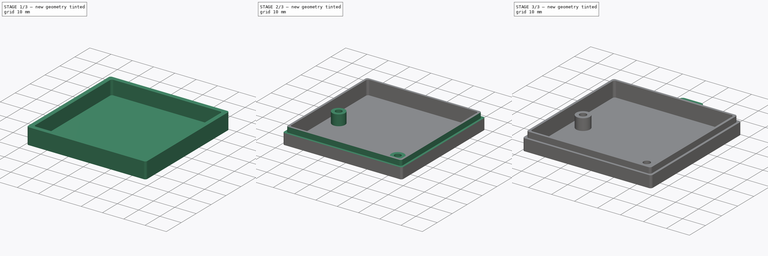
[diagram: build sequence overview — one tinted view per stage of 3, left to right]
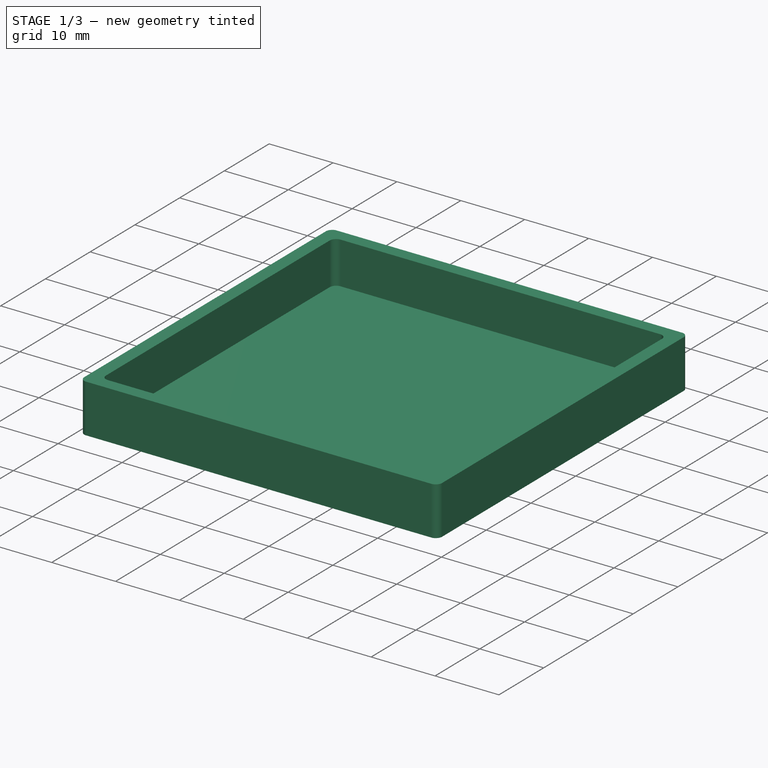
[diagram: stage 1 of 3 — iso view after this stage's code; geometry added in this stage tinted green]
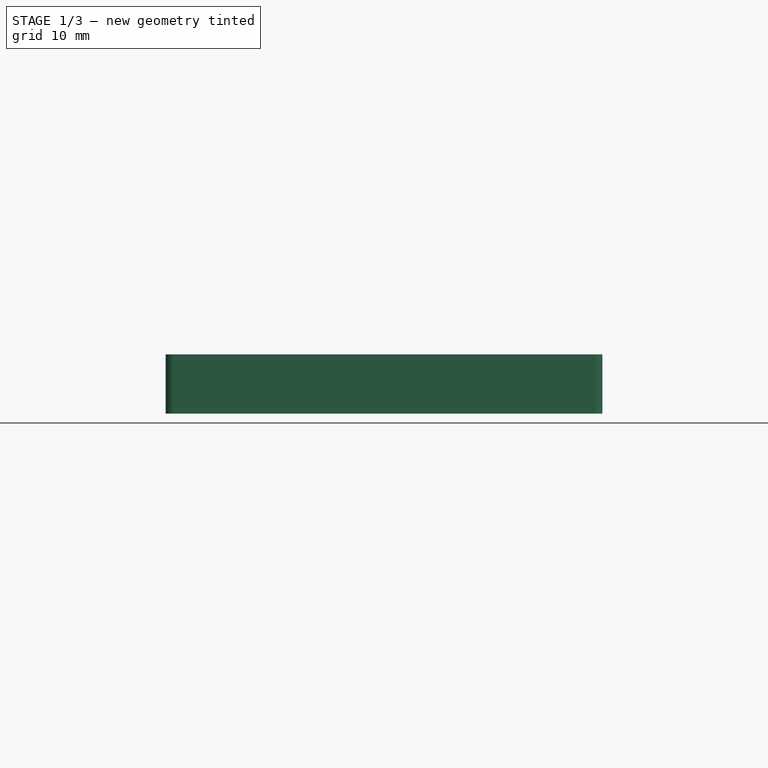
[diagram: stage 1 of 3 — front view after this stage's code; geometry added in this stage tinted green]
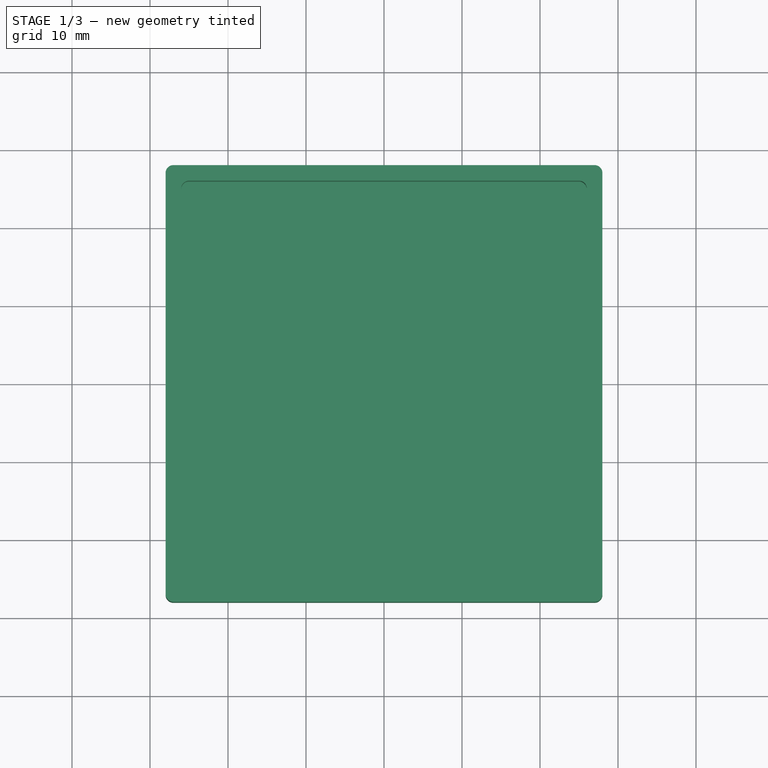
[diagram: stage 1 of 3 — top view after this stage's code; geometry added in this stage tinted green]
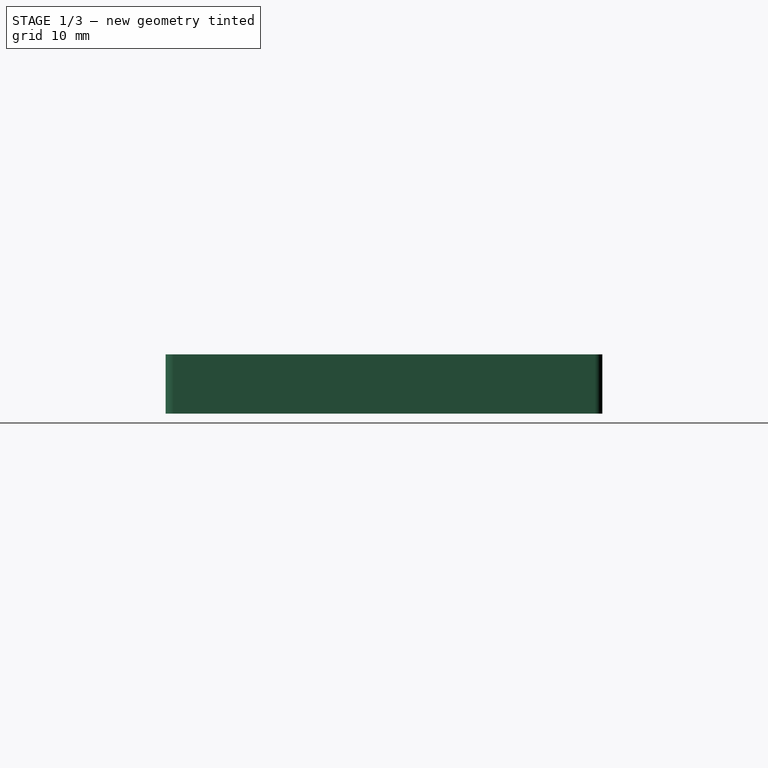
[diagram: stage 1 of 3 — right view after this stage's code; geometry added in this stage tinted green]
FCSTD DOCUMENT  (FreeCAD 0.19R24291 (Git))
Label: Base
License: All rights reserved
LicenseURL: http://en.wikipedia.org/wiki/All_rights_reserved
objects: Sketcher::SketchObject×6, PartDesign::Pad×3, PartDesign::Pocket×3, PartDesign::Body×1
note: 19 computed .brp shape members not serialized (recipe doc carries the construction recipe); baked Part::Feature solids carry a one-line shape summary decoded from their .brp

FEATURE [Sketcher::SketchObject] Sketch
  FullyConstrained = true
  MapMode = 5
  Support = -> [XY_Plane]
  sketch-geometry (8):
    g0: LineSegment StartX=-27 StartY=28 StartZ=0 EndX=27 EndY=28 EndZ=0
    g1: LineSegment StartX=28 StartY=27 StartZ=0 EndX=28 EndY=-27 EndZ=0
    g2: LineSegment StartX=27 StartY=-28 StartZ=0 EndX=-27 EndY=-28 EndZ=0
    g3: LineSegment StartX=-28 StartY=-27 StartZ=0 EndX=-28 EndY=27 EndZ=0
    g4: ArcOfCircle CenterX=-27 CenterY=27 CenterZ=0 NormalX=0 NormalY=0 NormalZ=1 AngleXU=0 Radius=1 StartAngle=1.5708 EndAngle=3.14159
    g5: ArcOfCircle CenterX=27 CenterY=27 CenterZ=0 NormalX=0 NormalY=0 NormalZ=1 AngleXU=0 Radius=1 StartAngle=-9e-16 EndAngle=1.5708
    g6: ArcOfCircle CenterX=27 CenterY=-27 CenterZ=0 NormalX=0 NormalY=0 NormalZ=1 AngleXU=0 Radius=1 StartAngle=4.71239 EndAngle=6.28319
    g7: ArcOfCircle CenterX=-27 CenterY=-27 CenterZ=0 NormalX=0 NormalY=0 NormalZ=1 AngleXU=0 Radius=1 StartAngle=3.14159 EndAngle=4.71239
  constraints (20):
    c: Horizontal(g2)
    c: Horizontal(g0)
    c: Vertical(g1)
    c: Vertical(g3)
    c: Tangent(g3,g4) = 1.5708
    c: Tangent(g0,g4) = 1.5708
    c: DistanceY(g4,g0) = 1
    c: Tangent(g1,g5) = 1.5708
    c: Tangent(g0,g5) = 1.5708
    c: DistanceX(g5,g1) = 1
    c: Tangent(g1,g6) = 1.5708
    c: Tangent(g2,g6) = 1.5708
    c: DistanceX(g6,g1) = 1
    c: Tangent(g2,g7) = 1.5708
    c: Tangent(g3,g7) = 1.5708
    c: DistanceX(g3,g7) = 1
    c: DistanceY(g2,g0) = 56
    c: DistanceY(g-1,g0) = 28
    c: DistanceX(g3,g1) = 56
    c: DistanceX(g3,g-1) = 28
FEATURE [PartDesign::Pad] Pad
  Direction = (1,1,1)
  Length = 7.6
  Length2 = 100
  Profile = -> Sketch
  Type = 0
FEATURE [Sketcher::SketchObject] Sketch001
  FullyConstrained = true
  MapMode = 5
  Placement = pos=(0,0,7.6) rot=(0,0,1;0rad)
  Support = -> [Pad]
  sketch-geometry (8):
    g0: LineSegment StartX=-25 StartY=26 StartZ=0 EndX=25 EndY=26 EndZ=0
    g1: LineSegment StartX=26 StartY=25 StartZ=0 EndX=26 EndY=-25 EndZ=0
    g2: LineSegment StartX=25 StartY=-26 StartZ=0 EndX=-25 EndY=-26 EndZ=0
    g3: LineSegment StartX=-26 StartY=-25 StartZ=0 EndX=-26 EndY=25 EndZ=0
    g4: ArcOfCircle CenterX=25 CenterY=25 CenterZ=0 NormalX=0 NormalY=0 NormalZ=1 AngleXU=0 Radius=1 StartAngle=2.7272e-12 EndAngle=1.5708
    g5: ArcOfCircle CenterX=-25 CenterY=25 CenterZ=0 NormalX=0 NormalY=0 NormalZ=1 AngleXU=0 Radius=1 StartAngle=1.5708 EndAngle=3.14159
    g6: ArcOfCircle CenterX=-25 CenterY=-25 CenterZ=0 NormalX=0 NormalY=0 NormalZ=1 AngleXU=0 Radius=1 StartAngle=3.14159 EndAngle=4.71239
    g7: ArcOfCircle CenterX=25 CenterY=-25 CenterZ=0 NormalX=0 NormalY=0 NormalZ=1 AngleXU=0 Radius=1 StartAngle=4.71239 EndAngle=6.28319
  constraints (20):
    c: Horizontal(g0)
    c: Vertical(g1)
    c: Vertical(g3)
    c: Horizontal(g2)
    c: Tangent(g1,g4) = 1.5708
    c: Tangent(g0,g4) = 1.5708
    c: DistanceY(g4,g0) = 1
    c: Tangent(g0,g5) = 1.5708
    c: Tangent(g3,g5) = 1.5708
    c: DistanceY(g5,g0) = 1
    c: Tangent(g2,g6) = 1.5708
    c: Tangent(g3,g6) = 1.5708
    c: DistanceY(g2,g6) = 1
    c: Tangent(g1,g7) = 1.5708
    c: Tangent(g2,g7) = 1.5708
    c: DistanceX(g7,g1) = 1
    c: DistanceX(g-1,g1) = 26
    c: DistanceX(g3,g1) = 52
    c: DistanceY(g-1,g0) = 26
    c: DistanceY(g2,g0) = 52
FEATURE [PartDesign::Pocket] Pocket
  BaseFeature = -> Pad
  Length = 6.6
  Length2 = 100
  Profile = -> Sketch001
  Type = 0
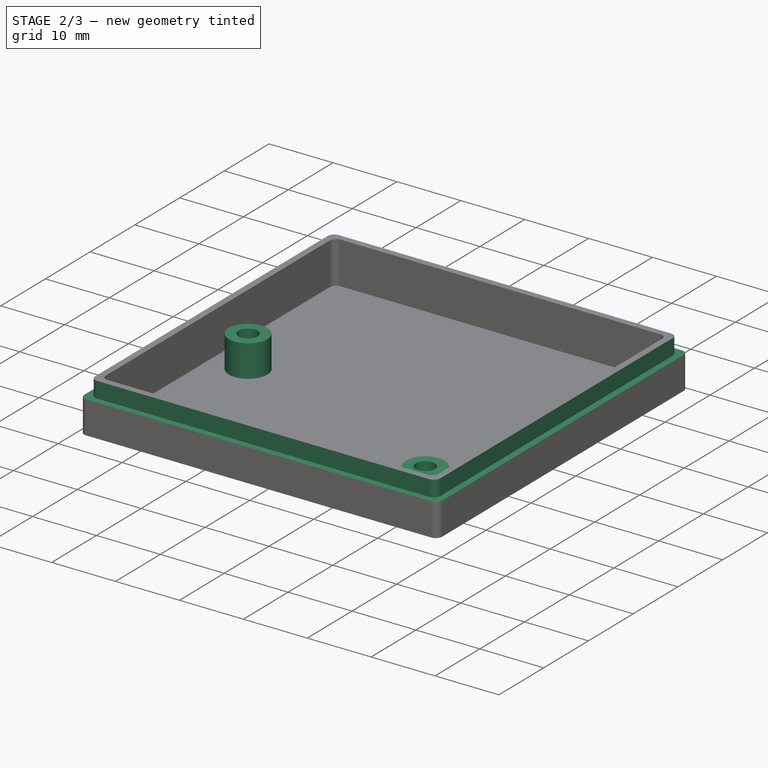
[diagram: stage 2 of 3 — iso view after this stage's code; geometry added in this stage tinted green]
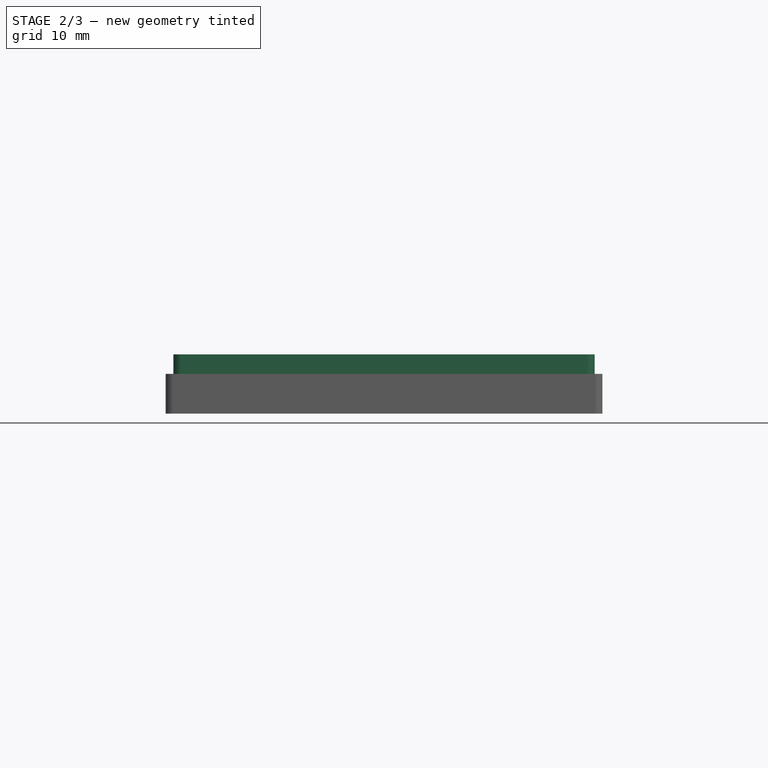
[diagram: stage 2 of 3 — front view after this stage's code; geometry added in this stage tinted green]
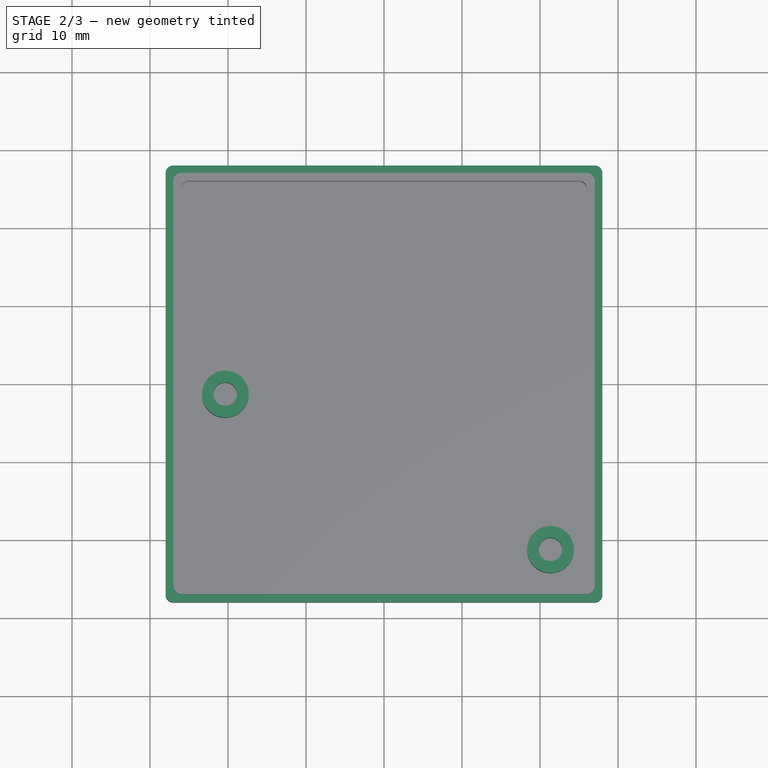
[diagram: stage 2 of 3 — top view after this stage's code; geometry added in this stage tinted green]
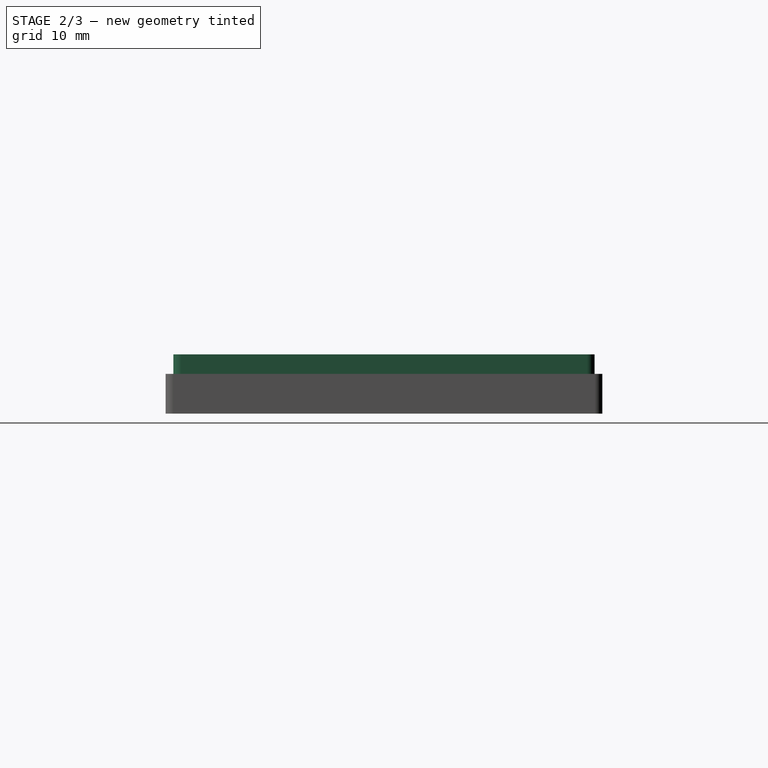
[diagram: stage 2 of 3 — right view after this stage's code; geometry added in this stage tinted green]
FEATURE [Sketcher::SketchObject] Sketch002
  FullyConstrained = true
  MapMode = 5
  Placement = pos=(0,0,1) rot=(0,0,1;0rad)
  Support = -> [Pocket]
  sketch-geometry (5):
    g0: GeomPoint X=-26 Y=-26 Z=0
    g1: Circle CenterX=-20.3447 CenterY=-1.323 CenterZ=0 NormalX=0 NormalY=0 NormalZ=1 AngleXU=0 Radius=1.5
    g2: Circle CenterX=21.34 CenterY=-21.243 CenterZ=0 NormalX=0 NormalY=0 NormalZ=1 AngleXU=0 Radius=1.5
    g3: Circle CenterX=-20.3447 CenterY=-1.323 CenterZ=0 NormalX=0 NormalY=0 NormalZ=1 AngleXU=0 Radius=3
    g4: Circle CenterX=21.34 CenterY=-21.243 CenterZ=0 NormalX=0 NormalY=0 NormalZ=1 AngleXU=0 Radius=3
  constraints (12):
    c: DistanceY(g0,g-1) = 26
    c: DistanceX(g0,g-1) = 26
    c: Radius(g1) = 1.5
    c: DistanceX(g1,g-1) = 20.3447
    c: DistanceY(g0,g1) = 24.677
    c: Radius(g2) = 1.5
    c: DistanceX(g0,g2) = 47.34
    c: DistanceY(g0,g2) = 4.757
    c: Radius(g3) = 3
    c: Coincident(g3,g1)
    c: Radius(g4) = 3
    c: Coincident(g4,g2)
FEATURE [PartDesign::Pad] Pad001
  BaseFeature = -> Pocket
  Direction = (1,1,1)
  Length = 5
  Length2 = 100
  Profile = -> Sketch002
  Type = 0
FEATURE [Sketcher::SketchObject] Sketch003
  FullyConstrained = false
  MapMode = 5
  Placement = pos=(0,0,7.6) rot=(0,0,1;0rad)
  Support = -> [Pad001]
  sketch-geometry (16):
    g0: LineSegment StartX=27.1459 StartY=28.0646 StartZ=0 EndX=28.0664 EndY=28.0646 EndZ=0
    g1: LineSegment StartX=28.0664 StartY=28.0646 StartZ=0 EndX=28.0664 EndY=-28.099 EndZ=0
    g2: LineSegment StartX=28.0664 StartY=-28.099 StartZ=0 EndX=27.1459 EndY=-28.099 EndZ=0
    g3: LineSegment StartX=27 StartY=-26 StartZ=0 EndX=27 EndY=26 EndZ=0
    g4: LineSegment StartX=27.1459 StartY=-28.099 StartZ=0 EndX=-28.1448 EndY=-28.099 EndZ=0
    g5: LineSegment StartX=-28.1448 StartY=-28.099 StartZ=0 EndX=-28.1448 EndY=-26.7506 EndZ=0
    g6: LineSegment StartX=-26 StartY=-27 StartZ=0 EndX=26 EndY=-27 EndZ=0
    g7: LineSegment StartX=-27 StartY=-26 StartZ=0 EndX=-27 EndY=26 EndZ=0
    g8: LineSegment StartX=-26.6144 StartY=28.0646 StartZ=0 EndX=-28.1448 EndY=28.0646 EndZ=0
    g9: LineSegment StartX=-28.1448 StartY=28.0646 StartZ=0 EndX=-28.1448 EndY=-26.7506 EndZ=0
    g10: LineSegment StartX=27.1459 StartY=28.0646 StartZ=0 EndX=-26.6144 EndY=28.0646 EndZ=0
    g11: LineSegment StartX=-26 StartY=27 StartZ=0 EndX=26 EndY=27 EndZ=0
    g12: ArcOfCircle CenterX=26 CenterY=26 CenterZ=0 NormalX=0 NormalY=0 NormalZ=1 AngleXU=0 Radius=1 StartAngle=2e-16 EndAngle=1.5708
    g13: ArcOfCircle CenterX=-26 CenterY=26 CenterZ=0 NormalX=0 NormalY=0 NormalZ=1 AngleXU=0 Radius=1 StartAngle=1.5708 EndAngle=3.14159
    g14: ArcOfCircle CenterX=-26 CenterY=-26 CenterZ=0 NormalX=0 NormalY=0 NormalZ=1 AngleXU=0 Radius=1 StartAngle=3.14159 EndAngle=4.71239
    g15: ArcOfCircle CenterX=26 CenterY=-26 CenterZ=0 NormalX=0 NormalY=0 NormalZ=1 AngleXU=0 Radius=1 StartAngle=4.71239 EndAngle=6.28319
  constraints (35):
    c: Coincident(g0,g1)
    c: Coincident(g1,g2)
    c: Horizontal(g0)
    c: Horizontal(g2)
    c: Vertical(g1)
    c: Vertical(g3)
    c: Coincident(g4,g5)
    c: Horizontal(g4)
    c: Horizontal(g6)
    c: Vertical(g5)
    c: Coincident(g4,g2)
    c: Coincident(g8,g9)
    c: Horizontal(g8)
    c: Vertical(g7)
    c: Vertical(g9)
    c: Horizontal(g10)
    c: Horizontal(g11)
    c: Coincident(g10,g0)
    c: Coincident(g8,g10)
    c: Tangent(g11,g12) = 1.5708
    c: Tangent(g3,g12) = -1.5708
    c: Tangent(g7,g13) = 1.5708
    c: Tangent(g11,g13) = 1.5708
    c: Tangent(g7,g14) = 1.5708
    c: Tangent(g6,g14) = -1.5708
    c: Tangent(g3,g15) = -1.5708
    c: Tangent(g6,g15) = -1.5708
    c: DistanceY(g12,g11) = 1
    c: DistanceY(g13,g11) = 1
    c: DistanceY(g6,g15) = 1
    c: DistanceY(g6,g14) = 1
    c: DistanceX(g7,g-1) = 27
    c: DistanceY(g-1,g11) = 27
    c: DistanceY(g6,g-1) = 27
    c: DistanceX(g-1,g3) = 27
FEATURE [PartDesign::Pocket] Pocket001
  BaseFeature = -> Pad001
  Length = 2.5
  Length2 = 100
  Profile = -> Sketch003
  Type = 0
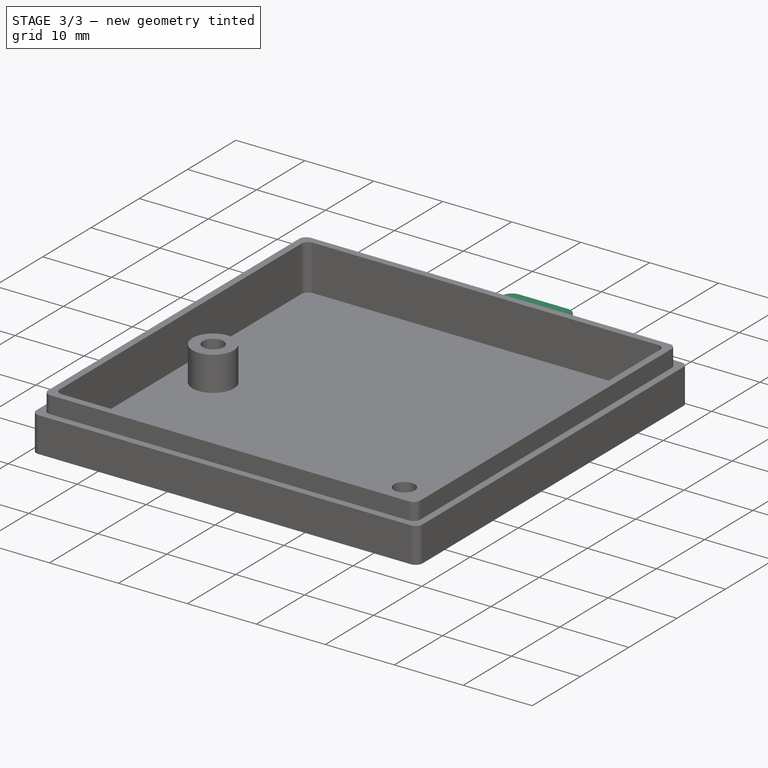
[diagram: stage 3 of 3 — iso view after this stage's code; geometry added in this stage tinted green]
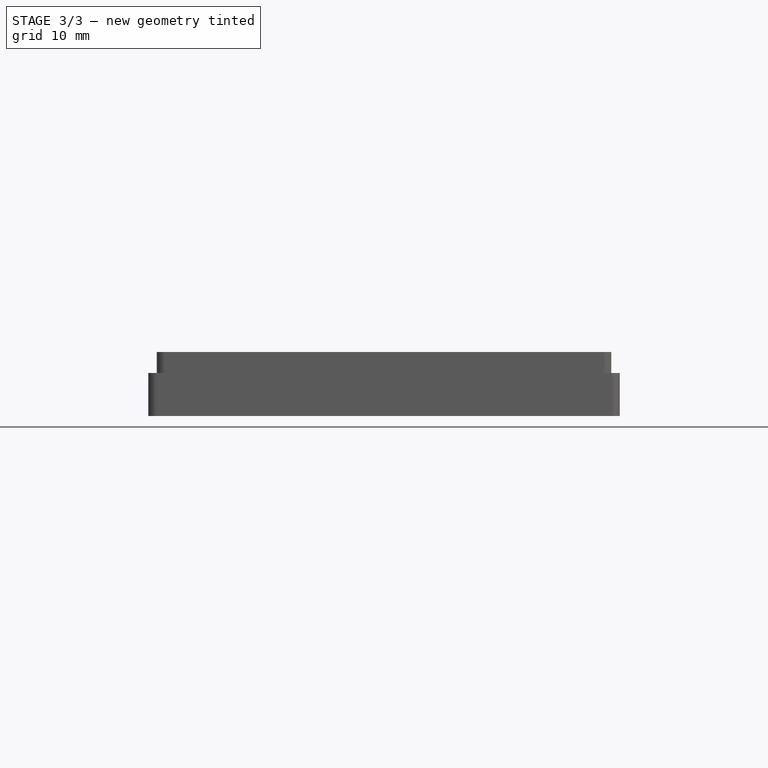
[diagram: stage 3 of 3 — front view after this stage's code; geometry added in this stage tinted green]
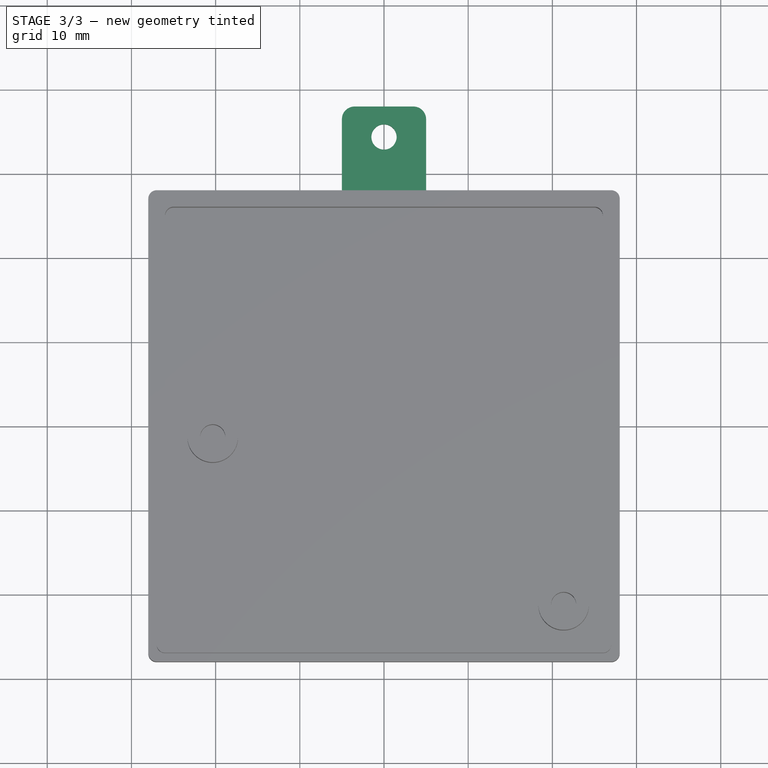
[diagram: stage 3 of 3 — top view after this stage's code; geometry added in this stage tinted green]
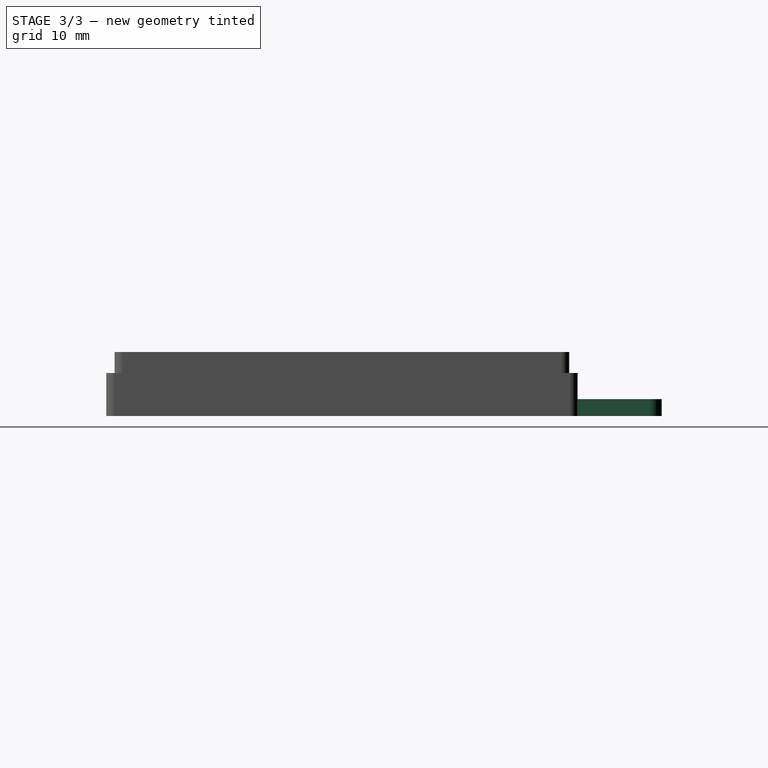
[diagram: stage 3 of 3 — right view after this stage's code; geometry added in this stage tinted green]
FEATURE [Sketcher::SketchObject] Sketch004
  FullyConstrained = true
  MapMode = 5
  Placement = pos=(0,28,0) rot=(0,0.707107,0.707107;3.14159rad)
  Support = -> [Pocket001]
  sketch-geometry (4):
    g0: LineSegment StartX=-5 StartY=0 StartZ=0 EndX=5 EndY=0 EndZ=0
    g1: LineSegment StartX=5 StartY=0 StartZ=0 EndX=5 EndY=2 EndZ=0
    g2: LineSegment StartX=5 StartY=2 StartZ=0 EndX=-5 EndY=2 EndZ=0
    g3: LineSegment StartX=-5 StartY=2 StartZ=0 EndX=-5 EndY=0 EndZ=0
  constraints (12):
    c: Coincident(g0,g1)
    c: Coincident(g1,g2)
    c: Coincident(g2,g3)
    c: Coincident(g3,g0)
    c: Horizontal(g0)
    c: Horizontal(g2)
    c: Vertical(g1)
    c: Vertical(g3)
    c: PointOnObject(g0,g-1)
    c: DistanceY(g1,g1) = 2
    c: DistanceX(g0,g-1) = 5
    c: DistanceX(g-1,g0) = 5
FEATURE [PartDesign::Pad] Pad002
  BaseFeature = -> Pocket001
  Direction = (1,1,1)
  Length = 10
  Length2 = 100
  Profile = -> Sketch004
  Type = 0
FEATURE [Sketcher::SketchObject] Sketch005
  FullyConstrained = false
  MapMode = 5
  Placement = pos=(0,4e-16,2) rot=(0,0,1;0rad)
  Support = -> [Pad002]
  sketch-geometry (11):
    g0: Circle CenterX=0 CenterY=34.3841 CenterZ=0 NormalX=0 NormalY=0 NormalZ=1 AngleXU=0 Radius=1.5
    g1: LineSegment StartX=-3.5 StartY=38 StartZ=0 EndX=3.5 EndY=38 EndZ=0
    g2: LineSegment StartX=5 StartY=36.5 StartZ=0 EndX=5 EndY=28 EndZ=0
    g3: ArcOfCircle CenterX=3.5 CenterY=36.5 CenterZ=0 NormalX=0 NormalY=0 NormalZ=1 AngleXU=0 Radius=1.5 StartAngle=5.523e-13 EndAngle=1.5708
    g4: LineSegment StartX=-5 StartY=36.5 StartZ=0 EndX=-5 EndY=28 EndZ=0
    g5: ArcOfCircle CenterX=-3.5 CenterY=36.5 CenterZ=0 NormalX=0 NormalY=0 NormalZ=1 AngleXU=0 Radius=1.5 StartAngle=1.5708 EndAngle=3.14159
    g6: LineSegment StartX=-5 StartY=28 StartZ=0 EndX=-5.5378 EndY=28 EndZ=0
    g7: LineSegment StartX=-5.5378 StartY=28 StartZ=0 EndX=-5.5378 EndY=38.7196 EndZ=0
    g8: LineSegment StartX=-5.5378 StartY=38.7196 StartZ=0 EndX=5.6915 EndY=38.7196 EndZ=0
    g9: LineSegment StartX=5.6915 StartY=38.7196 StartZ=0 EndX=5.6915 EndY=28 EndZ=0
    g10: LineSegment StartX=5.6915 StartY=28 StartZ=0 EndX=5 EndY=28 EndZ=0
  constraints (26):
    c: PointOnObject(g0,g-2)
    c: Radius(g0) = 1.5
    c: Horizontal(g1)
    c: Vertical(g2)
    c: Tangent(g2,g3) = 1.5708
    c: Tangent(g1,g3) = 1.5708
    c: Vertical(g4)
    c: Tangent(g4,g5) = -1.5708
    c: Tangent(g1,g5) = 1.5708
    c: Coincident(g6,g4)
    c: Horizontal(g6)
    c: Vertical(g7)
    c: Horizontal(g8)
    c: Coincident(g9,g8)
    c: Vertical(g9)
    c: Coincident(g10,g2)
    c: Horizontal(g10)
    c: DistanceY(g-1,g1) = 38
    c: DistanceX(g4,g0) = 5
    c: DistanceX(g0,g2) = 5
    c: DistanceY(g-1,g2) = 28
    c: Coincident(g9,g10)
    c: DistanceY(g-1,g4) = 28
    c: Coincident(g7,g6)
    c: DistanceY(g3,g1) = 1.5
    c: DistanceY(g5,g1) = 1.5
FEATURE [PartDesign::Pocket] Pocket002
  BaseFeature = -> Pad002
  Length = 5
  Length2 = 100
  Profile = -> Sketch005
  Type = 0
FEATURE [PartDesign::Body] Body
  Group = -> [Sketch,Pad,Sketch001,Pocket,Sketch002,Pad001,Sketch003,Pocket001,Sketch004,Pad002,Sketch005,Pocket002]
  Origin = -> Origin
  Tip = -> Pocket002
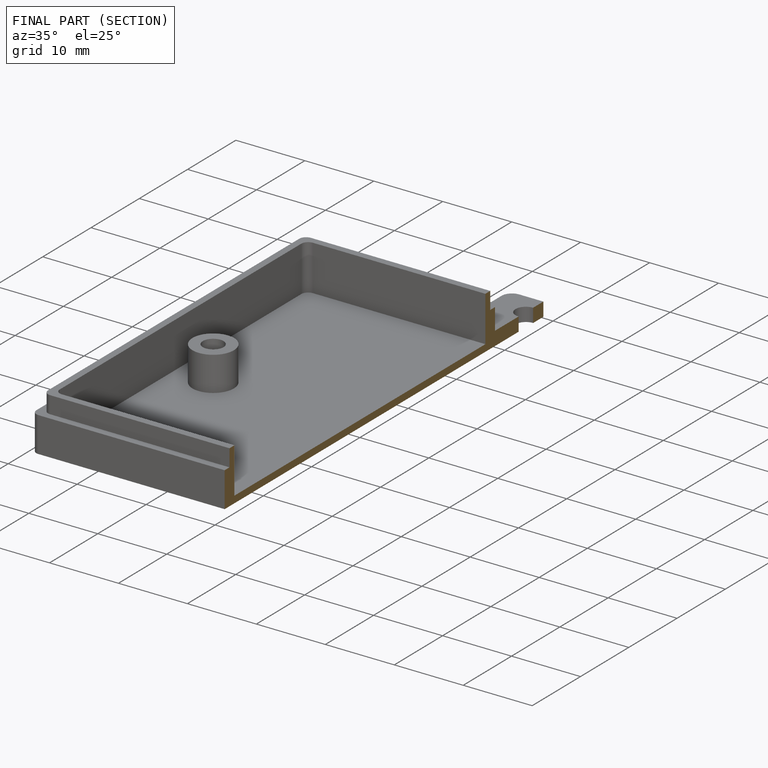
[diagram: finished part — half-section view (interior)]
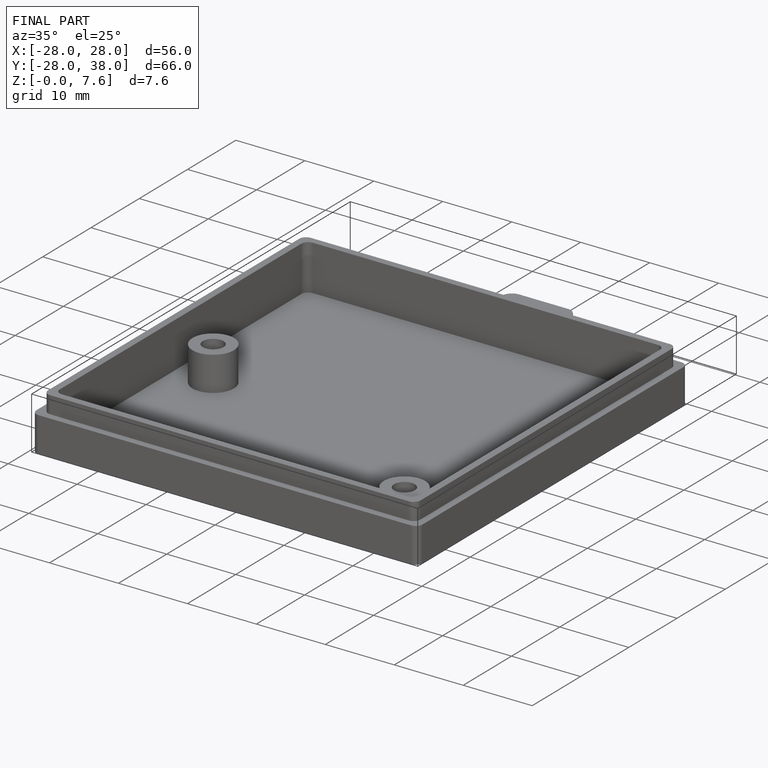
[diagram: finished part — iso view with bounding-box wireframe]
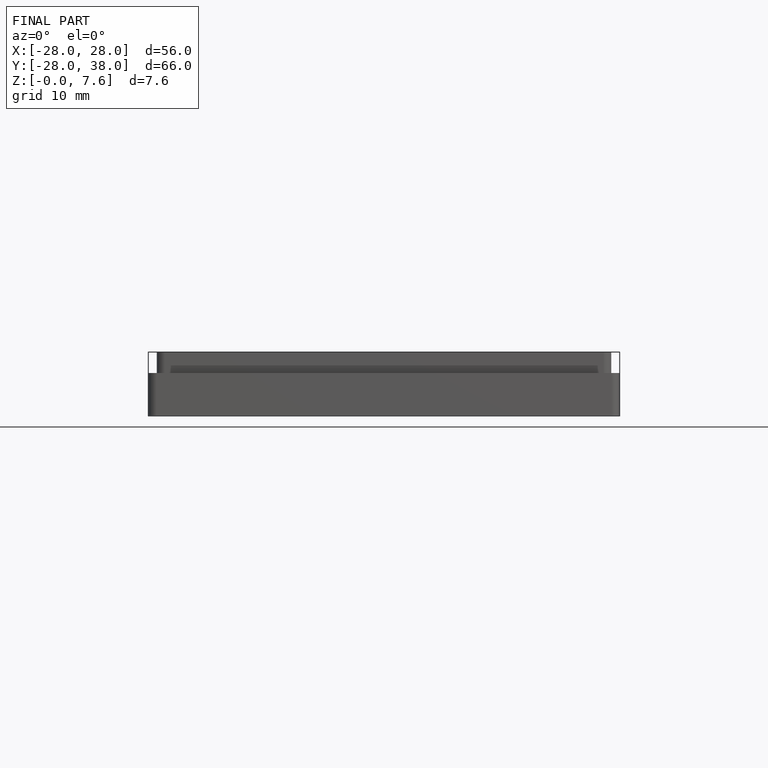
[diagram: finished part — front view with bounding-box wireframe]
